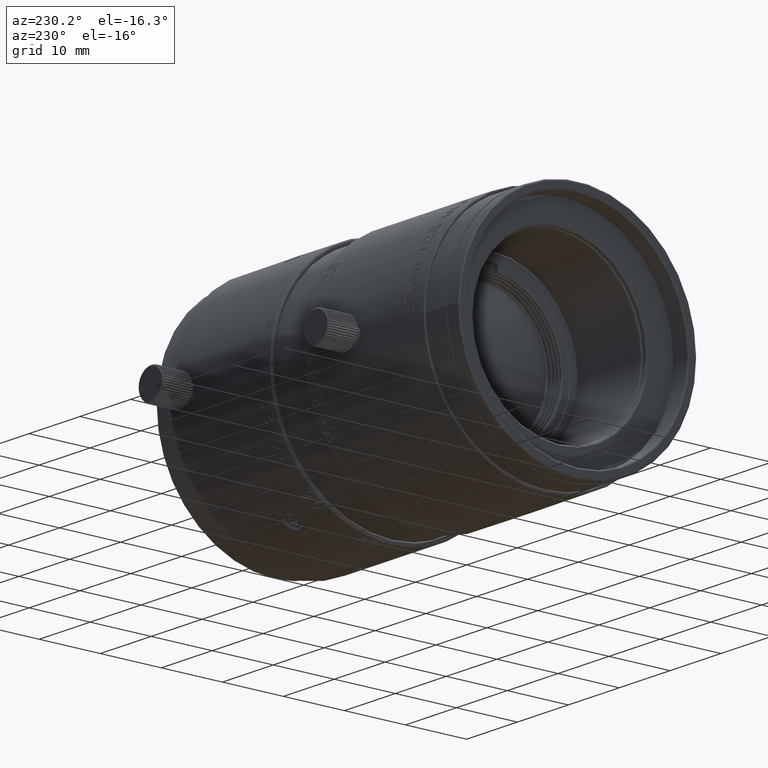
[diagram: clean part render]
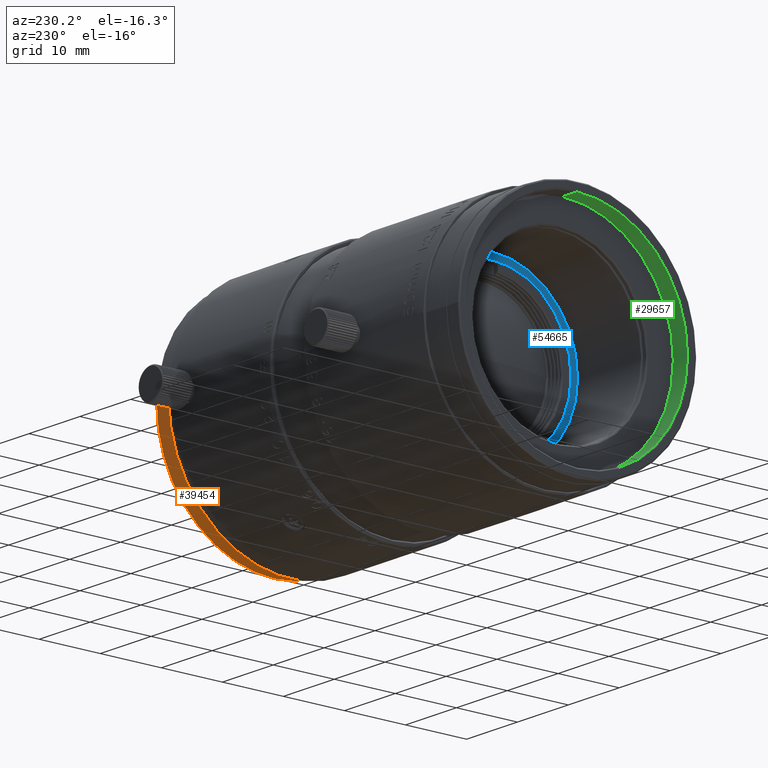
[diagram: same view with three faces highlighted in distinct colors, each labeled with its STEP entity id]
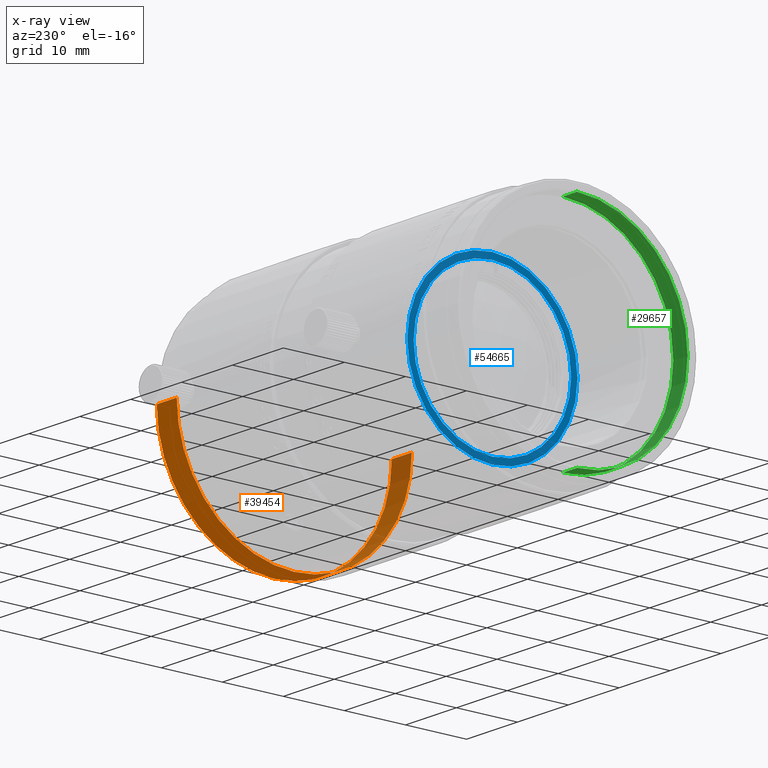
[diagram: x-ray of the same camera — body ghosted, the three highlighted faces saturated]
A machine part, auxiliary view with three faces highlighted in distinct colors.
The next image is the same camera in x-ray (body ghosted, the three faces saturated) — at least one of them is partly hidden behind the body in this view.
Their STEP definitions:

[orange] entity #39454 — the highlighted cylindrical surface (partial cylindrical patch) has radius 19.25 mm, axis along (-1, 0, 0).
#1966 = DIRECTION ( 'NONE',  ( 0.000000000000000000, 0.000000000000000000, -1.000000000000000000 ) ) ;
#3430 = EDGE_LOOP ( 'NONE', ( #94138, #62404, #65542, #73514, #37642, #4352 ) ) ;
#3480 = DIRECTION ( 'NONE',  ( 1.000000000000000000, -5.056565132568999372E-11, 0.000000000000000000 ) ) ;
#4084 = CIRCLE ( 'NONE', #98297, 19.25000000000000000 ) ;
#4205 = CARTESIAN_POINT ( 'NONE',  ( 0.000000000000000000, 0.000000000000000000, 0.000000000000000000 ) ) ;
#4352 = ORIENTED_EDGE ( 'NONE', *, *, #96556, .T. ) ;
#5013 = EDGE_CURVE ( 'NONE', #13882, #61702, #42042, .T. ) ;
#5214 = EDGE_CURVE ( 'NONE', #78693, #43467, #73830, .T. ) ;
#6150 = DIRECTION ( 'NONE',  ( 0.000000000000000000, -2.360296615366000148E-10, -1.000000000000000000 ) ) ;
#8506 = CARTESIAN_POINT ( 'NONE',  ( 0.000000000000000000, 0.000000000000000000, -4.626999999997999602 ) ) ;
#11831 = CARTESIAN_POINT ( 'NONE',  ( 0.000000000000000000, 0.000000000000000000, -0.6999999999978999687 ) ) ;
#13787 = VERTEX_POINT ( 'NONE', #31196 ) ;
#13882 = VERTEX_POINT ( 'NONE', #99272 ) ;
#15752 = EDGE_CURVE ( 'NONE', #78693, #104449, #98767, .T. ) ;
#17848 = AXIS2_PLACEMENT_3D ( 'NONE', #8506, #60354, #67640 ) ;
#19116 = CARTESIAN_POINT ( 'NONE',  ( 0.000000000000000000, -19.24999999999992539, -0.6999999999978999687 ) ) ;
#21472 = CYLINDRICAL_SURFACE ( 'NONE', #94872, 19.25000000000000000 ) ;
#31196 = CARTESIAN_POINT ( 'NONE',  ( 0.000000000000000000, -19.24999999999997158, -4.626999999997999602 ) ) ;
#34213 = DIRECTION ( 'NONE',  ( 0.000000000000000000, -2.362299370625999727E-10, 1.000000000000000000 ) ) ;
#35955 = DIRECTION ( 'NONE',  ( 1.000000000000000000, -5.056565132568999372E-11, 0.000000000000000000 ) ) ;
#36385 = DIRECTION ( 'NONE',  ( 0.000000000000000000, 0.000000000000000000, -1.000000000000000000 ) ) ;
#36793 = EDGE_CURVE ( 'NONE', #43467, #61702, #4084, .T. ) ;
#37642 = ORIENTED_EDGE ( 'NONE', *, *, #63351, .T. ) ;
#39301 = FACE_OUTER_BOUND ( 'NONE', #3430, .T. ) ;
#39454 = ADVANCED_FACE ( 'NONE', ( #39301 ), #21472, .T. ) ;
#41386 = CARTESIAN_POINT ( 'NONE',  ( 19.25000000000000000, -9.733887880194999397E-10, -0.6999999999978999687 ) ) ;
#41591 = CARTESIAN_POINT ( 'NONE',  ( -19.25000000000000000, 0.000000000000000000, -0.6999999999978999687 ) ) ;
#42042 = LINE ( 'NONE', #102852, #106087 ) ;
#43467 = VERTEX_POINT ( 'NONE', #19116 ) ;
#43525 = CARTESIAN_POINT ( 'NONE',  ( 19.25000000000000000, -9.733887880194999397E-10, -4.626999999997999602 ) ) ;
#44961 = VECTOR ( 'NONE', #6150, 1000.000000000000000 ) ;
#49673 = DIRECTION ( 'NONE',  ( 0.000000000000000000, -1.000000000000000000, 0.000000000000000000 ) ) ;
#51678 = CIRCLE ( 'NONE', #17848, 19.25000000000000000 ) ;
#56888 = CARTESIAN_POINT ( 'NONE',  ( 19.25000000000000000, -4.420683216740999948E-10, -0.6999999999978999687 ) ) ;
#58051 = DIRECTION ( 'NONE',  ( 0.000000000000000000, 0.000000000000000000, 1.000000000000000000 ) ) ;
#60354 = DIRECTION ( 'NONE',  ( 0.000000000000000000, 0.000000000000000000, 1.000000000000000000 ) ) ;
#61702 = VERTEX_POINT ( 'NONE', #41591 ) ;
#62404 = ORIENTED_EDGE ( 'NONE', *, *, #5214, .T. ) ;
#63351 = EDGE_CURVE ( 'NONE', #13882, #13787, #76793, .T. ) ;
#65542 = ORIENTED_EDGE ( 'NONE', *, *, #36793, .T. ) ;
#67640 = DIRECTION ( 'NONE',  ( 0.000000000000000000, -1.000000000000000000, 0.000000000000000000 ) ) ;
#73345 = DIRECTION ( 'NONE',  ( -1.000000000000000000, 0.000000000000000000, 0.000000000000000000 ) ) ;
#73514 = ORIENTED_EDGE ( 'NONE', *, *, #5013, .F. ) ;
#73830 = CIRCLE ( 'NONE', #77209, 19.25000000000000000 ) ;
#76793 = CIRCLE ( 'NONE', #98190, 19.25000000000000000 ) ;
#77209 = AXIS2_PLACEMENT_3D ( 'NONE', #11831, #36385, #3480 ) ;
#77303 = CARTESIAN_POINT ( 'NONE',  ( 0.000000000000000000, 0.000000000000000000, -0.6999999999978999687 ) ) ;
#78693 = VERTEX_POINT ( 'NONE', #41386 ) ;
#94138 = ORIENTED_EDGE ( 'NONE', *, *, #15752, .F. ) ;
#94872 = AXIS2_PLACEMENT_3D ( 'NONE', #4205, #107410, #73345 ) ;
#96556 = EDGE_CURVE ( 'NONE', #13787, #104449, #51678, .T. ) ;
#98190 = AXIS2_PLACEMENT_3D ( 'NONE', #101584, #58051, #49673 ) ;
#98297 = AXIS2_PLACEMENT_3D ( 'NONE', #77303, #1966, #35955 ) ;
#98767 = LINE ( 'NONE', #56888, #44961 ) ;
#99272 = CARTESIAN_POINT ( 'NONE',  ( -19.25000000000000000, 0.000000000000000000, -4.626999999997999602 ) ) ;
#101584 = CARTESIAN_POINT ( 'NONE',  ( 0.000000000000000000, 0.000000000000000000, -4.626999999997999602 ) ) ;
#102852 = CARTESIAN_POINT ( 'NONE',  ( -19.25000000000000000, 7.694010641385000141E-10, -4.626999999997999602 ) ) ;
#104449 = VERTEX_POINT ( 'NONE', #43525 ) ;
#106087 = VECTOR ( 'NONE', #34213, 1000.000000000000000 ) ;
#107410 = DIRECTION ( 'NONE',  ( 0.000000000000000000, 0.000000000000000000, -1.000000000000000000 ) ) ;

[blue] entity #54665 — the highlighted planar face has unit normal (-1, 0, 0).
#1151 = DIRECTION ( 'NONE',  ( 0.000000000000000000, 0.000000000000000000, -1.000000000000000000 ) ) ;
#2646 = CARTESIAN_POINT ( 'NONE',  ( 0.000000000000000000, 12.90000000000000036, 24.41000000000000014 ) ) ;
#2888 = EDGE_CURVE ( 'NONE', #9722, #41024, #34661, .T. ) ;
#4813 = EDGE_LOOP ( 'NONE', ( #62383, #52576 ) ) ;
#5008 = CIRCLE ( 'NONE', #67378, 12.90000000000000036 ) ;
#5259 = CIRCLE ( 'NONE', #31987, 13.95000000000000107 ) ;
#5727 = DIRECTION ( 'NONE',  ( 0.000000000000000000, 0.000000000000000000, 1.000000000000000000 ) ) ;
#6404 = CARTESIAN_POINT ( 'NONE',  ( 1.129319745618999928E-14, 0.000000000000000000, 24.41000000000000014 ) ) ;
#9722 = VERTEX_POINT ( 'NONE', #69487 ) ;
#16846 = AXIS2_PLACEMENT_3D ( 'NONE', #85392, #1151, #36229 ) ;
#19584 = FACE_OUTER_BOUND ( 'NONE', #105270, .T. ) ;
#20136 = PLANE ( 'NONE',  #36982 ) ;
#20917 = EDGE_CURVE ( 'NONE', #42122, #68085, #5008, .T. ) ;
#23676 = DIRECTION ( 'NONE',  ( 0.000000000000000000, 0.000000000000000000, -1.000000000000000000 ) ) ;
#31987 = AXIS2_PLACEMENT_3D ( 'NONE', #6404, #23676, #49328 ) ;
#34661 = CIRCLE ( 'NONE', #16846, 13.95000000000000107 ) ;
#36229 = DIRECTION ( 'NONE',  ( 0.000000000000000000, 1.000000000000000000, 0.000000000000000000 ) ) ;
#36982 = AXIS2_PLACEMENT_3D ( 'NONE', #105489, #70876, #88218 ) ;
#41024 = VERTEX_POINT ( 'NONE', #102811 ) ;
#42122 = VERTEX_POINT ( 'NONE', #2646 ) ;
#46566 = ORIENTED_EDGE ( 'NONE', *, *, #95236, .F. ) ;
#49328 = DIRECTION ( 'NONE',  ( 0.000000000000000000, -1.000000000000000000, 0.000000000000000000 ) ) ;
#52501 = CARTESIAN_POINT ( 'NONE',  ( 0.000000000000000000, -12.90000000000000036, 24.41000000000000014 ) ) ;
#52576 = ORIENTED_EDGE ( 'NONE', *, *, #75663, .F. ) ;
#54665 = ADVANCED_FACE ( 'NONE', ( #19584, #87116 ), #20136, .T. ) ;
#54693 = ORIENTED_EDGE ( 'NONE', *, *, #2888, .F. ) ;
#55712 = DIRECTION ( 'NONE',  ( 0.000000000000000000, 0.000000000000000000, 1.000000000000000000 ) ) ;
#62383 = ORIENTED_EDGE ( 'NONE', *, *, #20917, .F. ) ;
#62432 = CARTESIAN_POINT ( 'NONE',  ( 0.000000000000000000, 0.000000000000000000, 24.41000000000000014 ) ) ;
#64288 = CARTESIAN_POINT ( 'NONE',  ( 0.000000000000000000, 0.000000000000000000, 24.41000000000000014 ) ) ;
#67378 = AXIS2_PLACEMENT_3D ( 'NONE', #64288, #5727, #82708 ) ;
#68085 = VERTEX_POINT ( 'NONE', #52501 ) ;
#69487 = CARTESIAN_POINT ( 'NONE',  ( 0.000000000000000000, 13.95000000000000107, 24.41000000000000014 ) ) ;
#70237 = DIRECTION ( 'NONE',  ( 0.000000000000000000, -1.000000000000000000, 0.000000000000000000 ) ) ;
#70876 = DIRECTION ( 'NONE',  ( 0.000000000000000000, 0.000000000000000000, 1.000000000000000000 ) ) ;
#75663 = EDGE_CURVE ( 'NONE', #68085, #42122, #95395, .T. ) ;
#82708 = DIRECTION ( 'NONE',  ( 0.000000000000000000, 1.000000000000000000, 0.000000000000000000 ) ) ;
#85392 = CARTESIAN_POINT ( 'NONE',  ( 0.000000000000000000, 0.000000000000000000, 24.41000000000000014 ) ) ;
#87116 = FACE_BOUND ( 'NONE', #4813, .T. ) ;
#88218 = DIRECTION ( 'NONE',  ( 1.000000000000000000, 0.000000000000000000, 0.000000000000000000 ) ) ;
#88243 = AXIS2_PLACEMENT_3D ( 'NONE', #62432, #55712, #70237 ) ;
#95236 = EDGE_CURVE ( 'NONE', #41024, #9722, #5259, .T. ) ;
#95395 = CIRCLE ( 'NONE', #88243, 12.90000000000000036 ) ;
#102811 = CARTESIAN_POINT ( 'NONE',  ( 0.000000000000000000, -13.95000000000000107, 24.41000000000000014 ) ) ;
#105270 = EDGE_LOOP ( 'NONE', ( #46566, #54693 ) ) ;
#105489 = CARTESIAN_POINT ( 'NONE',  ( 0.000000000000000000, 0.000000000000000000, 24.41000000000000014 ) ) ;

[green] entity #29657 — the highlighted cylindrical surface (partial cylindrical patch) has radius 18.1 mm, axis along (-1, 0, 0).
#502 = VERTEX_POINT ( 'NONE', #106728 ) ;
#1745 = ORIENTED_EDGE ( 'NONE', *, *, #18211, .T. ) ;
#6011 = CARTESIAN_POINT ( 'NONE',  ( 0.000000000000000000, 18.10000000000000142, 4.500000000000000000 ) ) ;
#7408 = EDGE_LOOP ( 'NONE', ( #63729, #1745, #24162, #42792 ) ) ;
#15182 = CARTESIAN_POINT ( 'NONE',  ( 0.000000000000000000, 0.000000000000000000, 4.000000000000000000 ) ) ;
#15763 = EDGE_CURVE ( 'NONE', #51516, #49193, #69874, .T. ) ;
#17141 = AXIS2_PLACEMENT_3D ( 'NONE', #15182, #40843, #74873 ) ;
#17385 = LINE ( 'NONE', #102739, #81493 ) ;
#18211 = EDGE_CURVE ( 'NONE', #54386, #502, #106687, .T. ) ;
#21947 = DIRECTION ( 'NONE',  ( -3.303864092534000314E-10, 0.000000000000000000, 1.000000000000000000 ) ) ;
#22309 = DIRECTION ( 'NONE',  ( 0.000000000000000000, 0.000000000000000000, 1.000000000000000000 ) ) ;
#22853 = DIRECTION ( 'NONE',  ( 4.374666150844000104E-11, -1.000000000000000000, 0.000000000000000000 ) ) ;
#23832 = CARTESIAN_POINT ( 'NONE',  ( 0.000000000000000000, 0.000000000000000000, 4.500000000000000000 ) ) ;
#24162 = ORIENTED_EDGE ( 'NONE', *, *, #108345, .T. ) ;
#29657 = ADVANCED_FACE ( 'NONE', ( #48122 ), #66512, .F. ) ;
#40843 = DIRECTION ( 'NONE',  ( 0.000000000000000000, 0.000000000000000000, 1.000000000000000000 ) ) ;
#42792 = ORIENTED_EDGE ( 'NONE', *, *, #15763, .T. ) ;
#48122 = FACE_OUTER_BOUND ( 'NONE', #7408, .T. ) ;
#49193 = VERTEX_POINT ( 'NONE', #49809 ) ;
#49809 = CARTESIAN_POINT ( 'NONE',  ( -9.250808379930000924E-10, 18.10000000000000142, 7.299999999999999822 ) ) ;
#51393 = DIRECTION ( 'NONE',  ( -4.713234774271999909E-11, 0.000000000000000000, 1.000000000000000000 ) ) ;
#51516 = VERTEX_POINT ( 'NONE', #66873 ) ;
#54386 = VERTEX_POINT ( 'NONE', #6011 ) ;
#58585 = AXIS2_PLACEMENT_3D ( 'NONE', #23832, #74601, #90833 ) ;
#63729 = ORIENTED_EDGE ( 'NONE', *, *, #108641, .F. ) ;
#66512 = CYLINDRICAL_SURFACE ( 'NONE', #17141, 18.10000000000000142 ) ;
#66873 = CARTESIAN_POINT ( 'NONE',  ( 7.918065352881000283E-10, -18.10000000000000142, 7.299999999999999822 ) ) ;
#69874 = CIRCLE ( 'NONE', #102010, 18.10000000000000142 ) ;
#72522 = CARTESIAN_POINT ( 'NONE',  ( 0.000000000000000000, 0.000000000000000000, 7.299999999999999822 ) ) ;
#74601 = DIRECTION ( 'NONE',  ( 0.000000000000000000, 0.000000000000000000, -1.000000000000000000 ) ) ;
#74873 = DIRECTION ( 'NONE',  ( 0.000000000000000000, 1.000000000000000000, 0.000000000000000000 ) ) ;
#76184 = VECTOR ( 'NONE', #21947, 1000.000000000000000 ) ;
#81493 = VECTOR ( 'NONE', #51393, 1000.000000000000000 ) ;
#90833 = DIRECTION ( 'NONE',  ( 0.000000000000000000, 1.000000000000000000, 0.000000000000000000 ) ) ;
#97829 = LINE ( 'NONE', #98390, #76184 ) ;
#98390 = CARTESIAN_POINT ( 'NONE',  ( 0.000000000000000000, 18.10000000000000142, 4.500000000000000000 ) ) ;
#102010 = AXIS2_PLACEMENT_3D ( 'NONE', #72522, #22309, #22853 ) ;
#102739 = CARTESIAN_POINT ( 'NONE',  ( 5.278767520256000278E-10, -18.10000000000000142, 4.500000000000000000 ) ) ;
#106687 = CIRCLE ( 'NONE', #58585, 18.10000000000000142 ) ;
#106728 = CARTESIAN_POINT ( 'NONE',  ( 5.278767520256000278E-10, -18.10000000000000142, 4.500000000000000000 ) ) ;
#108345 = EDGE_CURVE ( 'NONE', #502, #51516, #17385, .T. ) ;
#108641 = EDGE_CURVE ( 'NONE', #54386, #49193, #97829, .T. ) ;